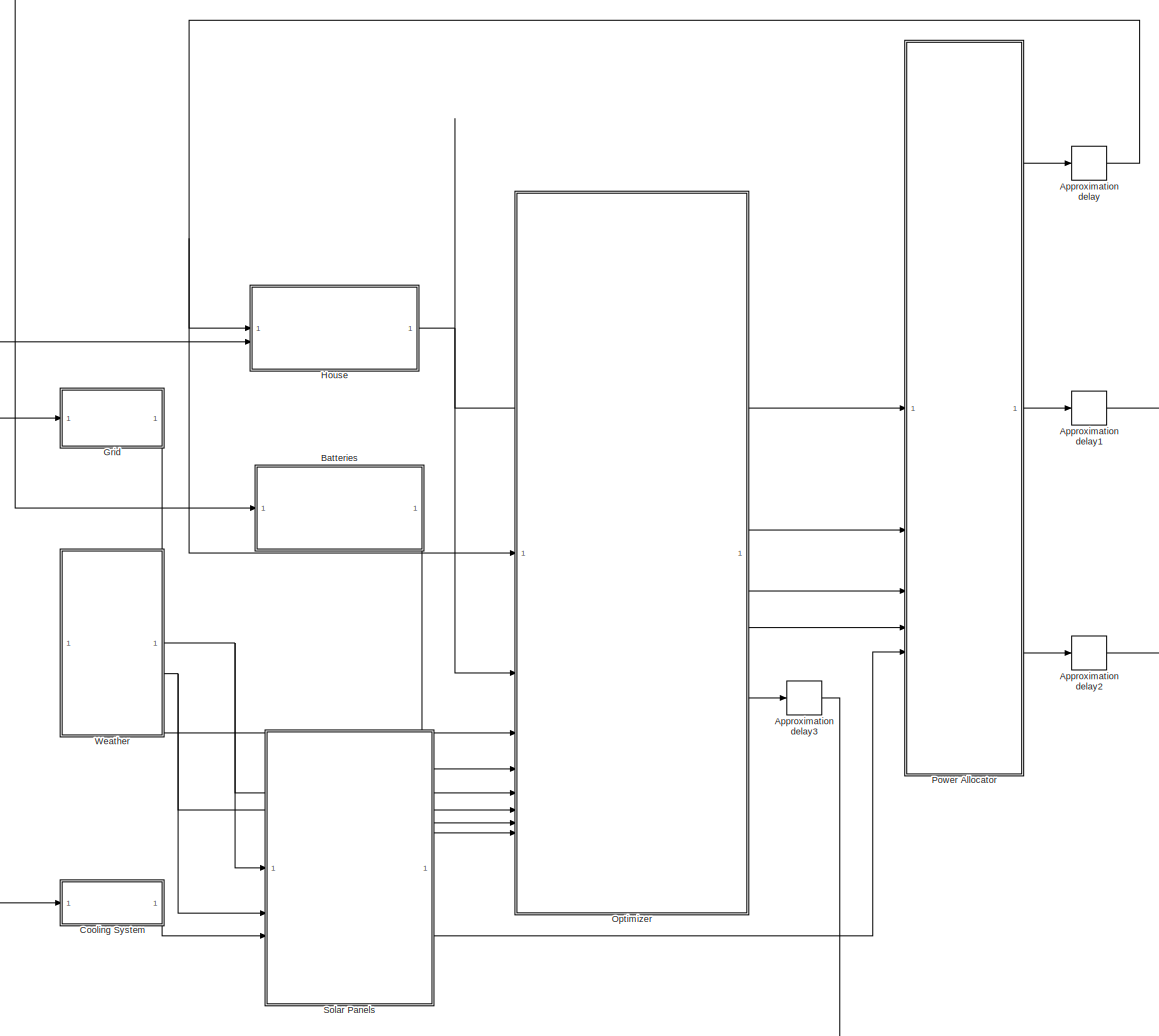
[diagram: root canvas - part 1/1, most of the canvas]
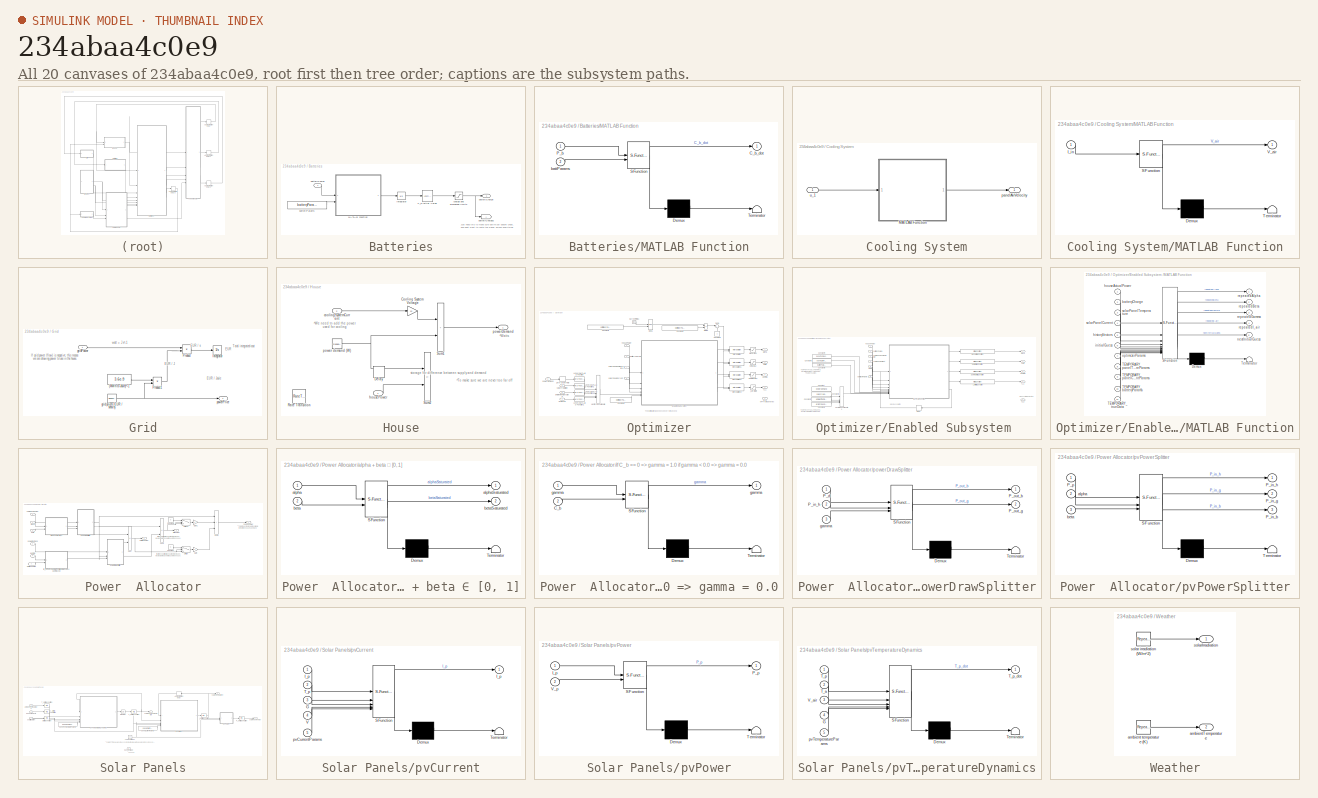
[diagram: thumbnail index - all 20 canvases of the model, root first then tree order]
MODEL slx_234abaa4c0e9
KIND model
CONFIG AbsTol = auto
CONFIG EnableMultiTasking = off
CONFIG FixedStep = optimizerParams.simulinkStepSize
CONFIG MaxStep = auto
CONFIG MinStep = auto
CONFIG RelTol = 1e-3
CONFIG SampleTimeConstraint = Unconstrained
CONFIG SolverName = ode14x
CONFIG StartTime = 0.0
CONFIG StopTime = 75000.0
BLOCK [Delay] Approximation delay
  DelayLength = 1
  InitialCondition = 0
  InputPortMap = u0
BLOCK [Delay] Approximation delay1
  DelayLength = 1
  InitialCondition = 0
  InputPortMap = u0
BLOCK [Delay] Approximation delay2
  DelayLength = 1
  InitialCondition = 0
  InputPortMap = u0
BLOCK [Delay] Approximation delay3
  DelayLength = 1
  InitialCondition = 0
  InputPortMap = u0
BLOCK [SubSystem] Batteries
BLOCK [InitialCondition] Batteries/C_b Initial Value
  Value = 0
BLOCK [Integrator] Batteries/Integrator
BLOCK [SubSystem] Batteries/MATLAB Function
  ErrorFcn = Stateflow.Translate.translate
  LibrarySourceBlock = simulink/User-Defined\nFunctions/MATLAB Function
  PermitHierarchicalResolution = ExplicitOnly
  SFBlockType = MATLAB Function
  TreatAsAtomicUnit = on
BLOCK [Demux] Batteries/MATLAB Function/ Demux 
  Outputs = 1
BLOCK [S-Function] Batteries/MATLAB Function/ SFunction 
  EnableBusSupport = on
  FunctionName = sf_sfun
  PortCounts = [2 2]
  SFcnIsStateOwnerBlock = off
  SFunctionDeploymentMode = off
  Tag = Stateflow S-Function 4
BLOCK [Terminator] Batteries/MATLAB Function/ Terminator 
BLOCK [Outport] Batteries/MATLAB Function/C_b_dot
BLOCK [Inport] Batteries/MATLAB Function/P_b
BLOCK [Inport] Batteries/MATLAB Function/battParams
  Port = 2
BLOCK [Outport] Batteries/batteryCharge
BLOCK [Goto] Batteries/batteryCharge2
  TagVisibility = global
BLOCK [Constant] Batteries/batteryParams
  OutDataTypeStr = Bus: battPars
  Value = batteryParams
BLOCK [Inport] Batteries/batteryPower
BLOCK [Saturate] Batteries/charge and discharge limits
  LowerLimit = 0.0
  UpperLimit = batteryParams.maxCharge
BLOCK [SubSystem] Cooling System
BLOCK [SubSystem] Cooling System/MATLAB Function
  ErrorFcn = Stateflow.Translate.translate
  LibrarySourceBlock = simulink/User-Defined\nFunctions/MATLAB Function
  PermitHierarchicalResolution = ExplicitOnly
  SFBlockType = MATLAB Function
  TreatAsAtomicUnit = on
BLOCK [Demux] Cooling System/MATLAB Function/ Demux 
  Outputs = 1
BLOCK [S-Function] Cooling System/MATLAB Function/ SFunction 
  EnableBusSupport = on
  FunctionName = sf_sfun
  PortCounts = [1 2]
  SFcnIsStateOwnerBlock = off
  SFunctionDeploymentMode = off
  Tag = Stateflow S-Function 7
BLOCK [Terminator] Cooling System/MATLAB Function/ Terminator 
BLOCK [Inport] Cooling System/MATLAB Function/I_in
BLOCK [Outport] Cooling System/MATLAB Function/V_air
BLOCK [Outport] Cooling System/panelAirVelocity
BLOCK [Inport] Cooling System/u_1
BLOCK [SubSystem] Grid
BLOCK [Constant] Grid/(MWh to Joule)^-1
  Value = 3.6e-9
BLOCK [Integrator] Grid/Integrator
BLOCK [Product] Grid/Product
BLOCK [Product] Grid/Product1
BLOCK [Reference] Grid/grid prices (EUR // MWh)  REF=simulink/Sources/Repeating
Sequence
Stair
  SourceBlock = simulink/Sources/Repeating\nSequence\nStair
  SourceType = Repeating Sequence Stair
BLOCK [Inport] Grid/gridPower
BLOCK [Outport] Grid/powerPrice
BLOCK [SubSystem] House
BLOCK [Gain] House/Cooling System Voltage
  Gain = 12
BLOCK [Delay] House/Delay
  DelayLength = 1
  InputPortMap = u0
BLOCK [RateTransition] House/Rate Transition
BLOCK [Sum] House/Sum1
  IconShape = rectangular
  Inputs = +|+
BLOCK [Sum] House/Sum2
  IconShape = rectangular
  Inputs = +|-
BLOCK [Inport] House/coolingSystemCurrent
  Port = 2
BLOCK [Inport] House/housePower
BLOCK [Reference] House/power demand (W)  REF=simulink/Sources/Repeating
Sequence
Stair
  SourceBlock = simulink/Sources/Repeating\nSequence\nStair
  SourceType = Repeating Sequence Stair
BLOCK [Outport] House/powerDemand
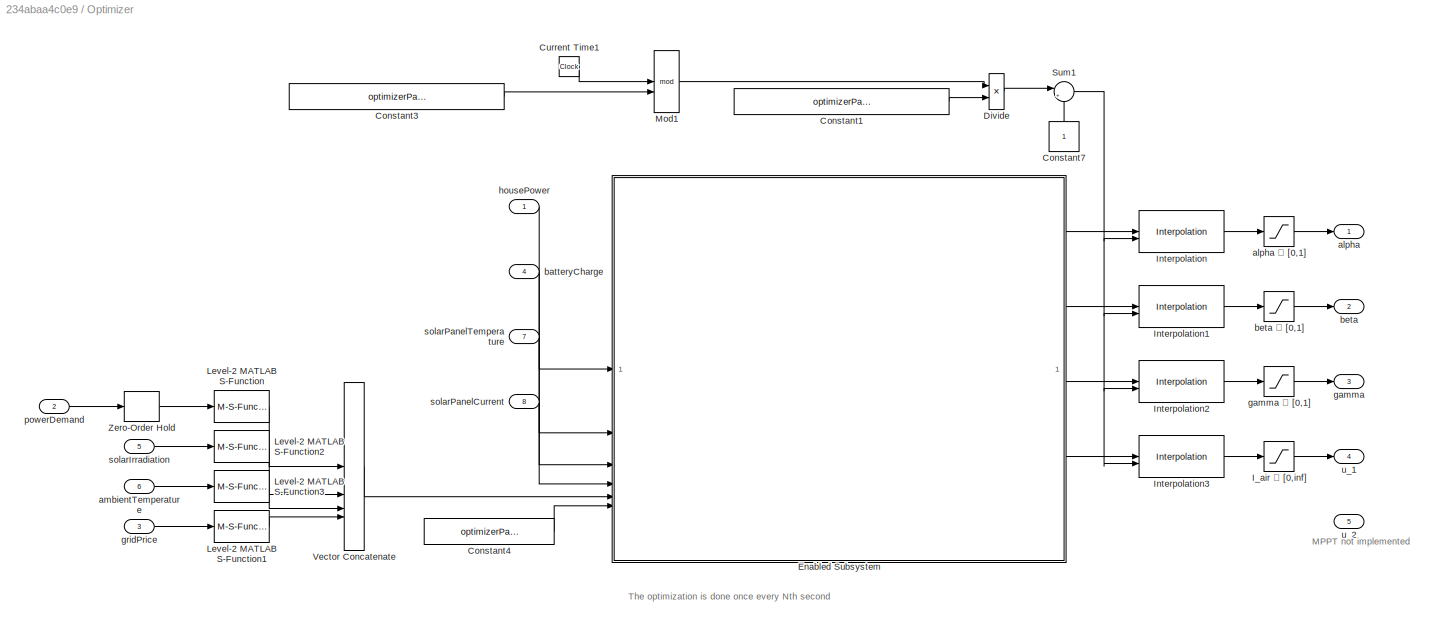
BLOCK [SubSystem] Optimizer
BLOCK [Constant] Optimizer/Constant1
  Value = optimizerParams.simulationStepSize
BLOCK [Constant] Optimizer/Constant3
  Value = optimizerParams.mpcBlockSize
BLOCK [Constant] Optimizer/Constant4
  OutDataTypeStr = Bus: optPars
  Value = optimizerParams
BLOCK [Constant] Optimizer/Constant7
  NameLocation = right
BLOCK [Clock] Optimizer/Current Time1
BLOCK [Product] Optimizer/Divide
  Inputs = */
BLOCK [SubSystem] Optimizer/Enabled Subsystem 
  TreatAsAtomicUnit = on
BLOCK [Constant] Optimizer/Enabled Subsystem /Constant
  Value = powerDemand
BLOCK [Constant] Optimizer/Enabled Subsystem /Constant1
  Value = gridPricesDayBefore
BLOCK [Constant] Optimizer/Enabled Subsystem /Constant2
  Value = solarIrradiation
BLOCK [Constant] Optimizer/Enabled Subsystem /Constant3
  Value = ambientTemperatures
BLOCK [Constant] Optimizer/Enabled Subsystem /Constant4
  OutDataTypeStr = Bus: panTempPars
  Value = panelTemperatureParams
  VectorParams1D = off
BLOCK [Constant] Optimizer/Enabled Subsystem /Constant5
  OutDataTypeStr = Bus: panCurrPars
  Value = panelCurrentParams
  VectorParams1D = off
BLOCK [Constant] Optimizer/Enabled Subsystem /Constant6
  LockScale = on
  OutDataTypeStr = Bus: battPars
  Value = batteryParams
  VectorParams1D = off
BLOCK [Delay] Optimizer/Enabled Subsystem /Delay
  DelayLength = 1
  InitialCondition = 0.26*ones(optimizerParams.numControlInputs*optimizerParams.controlVariableHorizon, 1)
  InputPortMap = u0
BLOCK [InitialCondition] Optimizer/Enabled Subsystem /I_air Initial Condition
  Value = zeros(optimizerParams.optimizationHorizon, 1)
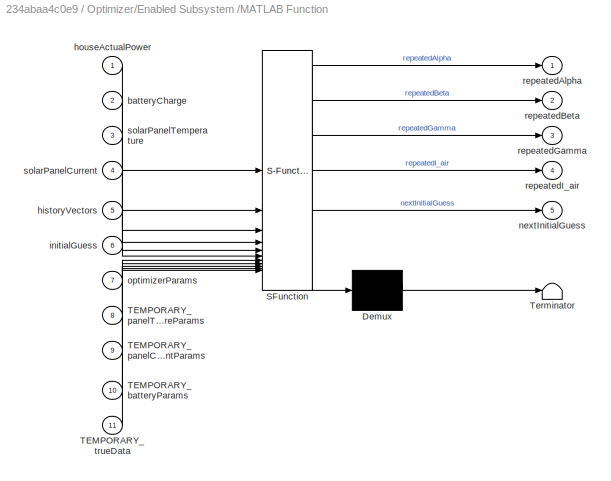
BLOCK [SubSystem] Optimizer/Enabled Subsystem /MATLAB Function
  ErrorFcn = Stateflow.Translate.translate
  LibrarySourceBlock = simulink/User-Defined\nFunctions/MATLAB Function
  MinAlgLoopOccurrences = on
  PermitHierarchicalResolution = ExplicitOnly
  SFBlockType = MATLAB Function
  SystemSampleTime = optimizerParams.mpcBlockSize
  TreatAsAtomicUnit = on
BLOCK [Demux] Optimizer/Enabled Subsystem /MATLAB Function/ Demux 
  Outputs = 1
BLOCK [S-Function] Optimizer/Enabled Subsystem /MATLAB Function/ SFunction 
  EnableBusSupport = on
  FunctionName = sf_sfun
  PortCounts = [11 6]
  SFcnIsStateOwnerBlock = off
  SFunctionDeploymentMode = off
  Tag = Stateflow S-Function 9
BLOCK [Terminator] Optimizer/Enabled Subsystem /MATLAB Function/ Terminator 
BLOCK [Inport] Optimizer/Enabled Subsystem /MATLAB Function/TEMPORARY_batteryParams
  Port = 10
BLOCK [Inport] Optimizer/Enabled Subsystem /MATLAB Function/TEMPORARY_panelCurrentParams
  Port = 9
BLOCK [Inport] Optimizer/Enabled Subsystem /MATLAB Function/TEMPORARY_panelTemperatureParams
  Port = 8
BLOCK [Inport] Optimizer/Enabled Subsystem /MATLAB Function/TEMPORARY_trueData
  Port = 11
BLOCK [Inport] Optimizer/Enabled Subsystem /MATLAB Function/batteryCharge
  Port = 2
BLOCK [Inport] Optimizer/Enabled Subsystem /MATLAB Function/historyVectors
  Port = 5
BLOCK [Inport] Optimizer/Enabled Subsystem /MATLAB Function/houseActualPower
BLOCK [Inport] Optimizer/Enabled Subsystem /MATLAB Function/initialGuess
  Port = 6
BLOCK [Outport] Optimizer/Enabled Subsystem /MATLAB Function/nextInitialGuess
  Port = 5
BLOCK [Inport] Optimizer/Enabled Subsystem /MATLAB Function/optimizerParams
  Port = 7
BLOCK [Outport] Optimizer/Enabled Subsystem /MATLAB Function/repeatedAlpha
BLOCK [Outport] Optimizer/Enabled Subsystem /MATLAB Function/repeatedBeta
  Port = 2
BLOCK [Outport] Optimizer/Enabled Subsystem /MATLAB Function/repeatedGamma
  Port = 3
BLOCK [Outport] Optimizer/Enabled Subsystem /MATLAB Function/repeatedI_air
  Port = 4
BLOCK [Inport] Optimizer/Enabled Subsystem /MATLAB Function/solarPanelCurrent
  Port = 4
BLOCK [Inport] Optimizer/Enabled Subsystem /MATLAB Function/solarPanelTemperature
  Port = 3
BLOCK [Concatenate] Optimizer/Enabled Subsystem /Vector Concatenate1
  ConcatenateDimension = 2
  Mode = Multidimensional array
  NumInputs = 4
BLOCK [Outport] Optimizer/Enabled Subsystem /alpha
BLOCK [InitialCondition] Optimizer/Enabled Subsystem /alpha Initial Condition
  Value = 0.26*ones(optimizerParams.optimizationHorizon, 1)
BLOCK [Inport] Optimizer/Enabled Subsystem /batteryCharge
  Port = 2
BLOCK [Outport] Optimizer/Enabled Subsystem /beta
  Port = 2
BLOCK [InitialCondition] Optimizer/Enabled Subsystem /beta Initial Condition
  Value = 0.25*ones(optimizerParams.optimizationHorizon, 1)
BLOCK [Outport] Optimizer/Enabled Subsystem /gamma
  Port = 3
BLOCK [InitialCondition] Optimizer/Enabled Subsystem /gamma Initial Condition
  Value = ones(optimizerParams.optimizationHorizon, 1)
BLOCK [Inport] Optimizer/Enabled Subsystem /history
  Port = 5
BLOCK [Inport] Optimizer/Enabled Subsystem /housePower
BLOCK [Inport] Optimizer/Enabled Subsystem /optimizerParams
  Port = 6
BLOCK [Inport] Optimizer/Enabled Subsystem /solarPanelCurrent
  Port = 4
BLOCK [Inport] Optimizer/Enabled Subsystem /solarPanelTemperature
  Port = 3
BLOCK [Outport] Optimizer/Enabled Subsystem /u_1
  Port = 4
BLOCK [Outport] Optimizer/Enabled Subsystem /u_2
  Port = 5
BLOCK [Saturate] Optimizer/I_air ∈ [0,inf]
  LowerLimit = 0
  UpperLimit = 99999999
BLOCK [Reference] Optimizer/Interpolation  REF=dspsigops/Interpolation
  SourceBlock = dspsigops/Interpolation
  SourceType = Interpolation
BLOCK [Reference] Optimizer/Interpolation1  REF=dspsigops/Interpolation
  SourceBlock = dspsigops/Interpolation
  SourceType = Interpolation
BLOCK [Reference] Optimizer/Interpolation2  REF=dspsigops/Interpolation
  SourceBlock = dspsigops/Interpolation
  SourceType = Interpolation
BLOCK [Reference] Optimizer/Interpolation3  REF=dspsigops/Interpolation
  SourceBlock = dspsigops/Interpolation
  SourceType = Interpolation
BLOCK [M-S-Function] Optimizer/Level-2 MATLAB S-Function
  FunctionName = history
  Parameters = SECONDS_IN_A_DAY
BLOCK [M-S-Function] Optimizer/Level-2 MATLAB S-Function1
  FunctionName = history
  Parameters = SECONDS_IN_A_DAY
BLOCK [M-S-Function] Optimizer/Level-2 MATLAB S-Function2
  FunctionName = history
  Parameters = SECONDS_IN_A_DAY
BLOCK [M-S-Function] Optimizer/Level-2 MATLAB S-Function3
  FunctionName = history
  Parameters = SECONDS_IN_A_DAY
BLOCK [Math] Optimizer/Mod1
  Operator = mod
  OutputSignalType = real
BLOCK [Sum] Optimizer/Sum1
  Inputs = |++
BLOCK [Concatenate] Optimizer/Vector Concatenate
  ConcatenateDimension = 2
  Mode = Multidimensional array
  NumInputs = 4
BLOCK [ZeroOrderHold] Optimizer/Zero-Order Hold
BLOCK [Outport] Optimizer/alpha
BLOCK [Saturate] Optimizer/alpha ∈ [0,1]
  LowerLimit = 0
  UpperLimit = 1
BLOCK [Inport] Optimizer/ambientTemperature
  Port = 6
BLOCK [Inport] Optimizer/batteryCharge
  Port = 4
BLOCK [Outport] Optimizer/beta
  Port = 2
BLOCK [Saturate] Optimizer/beta ∈ [0,1]
  LowerLimit = 0
  UpperLimit = 1
BLOCK [Outport] Optimizer/gamma
  Port = 3
BLOCK [Saturate] Optimizer/gamma ∈ [0,1]
  LowerLimit = 0
  UpperLimit = 1
BLOCK [Inport] Optimizer/gridPrice
  Port = 3
BLOCK [Inport] Optimizer/housePower
BLOCK [Inport] Optimizer/powerDemand
  Port = 2
BLOCK [Inport] Optimizer/solarIrradiation
  Port = 5
BLOCK [Inport] Optimizer/solarPanelCurrent
  Port = 8
BLOCK [Inport] Optimizer/solarPanelTemperature
  Port = 7
BLOCK [Outport] Optimizer/u_1
  Port = 4
BLOCK [Outport] Optimizer/u_2
  Port = 5
BLOCK [SubSystem] Power  Allocator
BLOCK [Constant] Power  Allocator/Constant
  Value = 0
BLOCK [Constant] Power  Allocator/Constant1
  Value = 0
BLOCK [Gain] Power  Allocator/Gain
  Gain = -1
BLOCK [Gain] Power  Allocator/Gain1
  Gain = -1
BLOCK [Sum] Power  Allocator/Sum
  IconShape = rectangular
  Inputs = +|-
BLOCK [Sum] Power  Allocator/Sum2
  IconShape = rectangular
  Inputs = +|-
BLOCK [Sum] Power  Allocator/Sum3
  IconShape = rectangular
  Inputs = +++
BLOCK [Switch] Power  Allocator/Switch
  Criteria = u2 > Threshold
  InputSameDT = off
  SaturateOnIntegerOverflow = off
BLOCK [Switch] Power  Allocator/Switch1
  Criteria = u2 > Threshold
  InputSameDT = off
  SaturateOnIntegerOverflow = off
BLOCK [Inport] Power  Allocator/alpha
  Port = 2
BLOCK [SubSystem] Power  Allocator/alpha + beta ∈ [0, 1]
  ErrorFcn = Stateflow.Translate.translate
  LibrarySourceBlock = simulink/User-Defined\nFunctions/MATLAB Function
  PermitHierarchicalResolution = ExplicitOnly
  SFBlockType = MATLAB Function
  TreatAsAtomicUnit = on
BLOCK [Demux] Power  Allocator/alpha + beta ∈ [0, 1]/ Demux 
  Outputs = 1
BLOCK [S-Function] Power  Allocator/alpha + beta ∈ [0, 1]/ SFunction 
  EnableBusSupport = on
  FunctionName = sf_sfun
  PortCounts = [2 3]
  SFcnIsStateOwnerBlock = off
  SFunctionDeploymentMode = off
  Tag = Stateflow S-Function 8
BLOCK [Terminator] Power  Allocator/alpha + beta ∈ [0, 1]/ Terminator 
BLOCK [Inport] Power  Allocator/alpha + beta ∈ [0, 1]/alpha
BLOCK [Outport] Power  Allocator/alpha + beta ∈ [0, 1]/alphaSaturated
BLOCK [Inport] Power  Allocator/alpha + beta ∈ [0, 1]/beta
  Port = 2
BLOCK [Outport] Power  Allocator/alpha + beta ∈ [0, 1]/betaSaturated
  Port = 2
BLOCK [From] Power  Allocator/batteryCharge
  TagVisibility = global
BLOCK [Outport] Power  Allocator/batteryPower
  Port = 2
BLOCK [Inport] Power  Allocator/beta
  Port = 3
BLOCK [Inport] Power  Allocator/gamma
  Port = 4
BLOCK [Outport] Power  Allocator/gridPower
  Port = 3
BLOCK [Outport] Power  Allocator/housePower
BLOCK [SubSystem] Power  Allocator/if C_b == 0 => gamma = 1.0 if gamma < 0.0 => gamma = 0.0
  ErrorFcn = Stateflow.Translate.translate
  LibrarySourceBlock = simulink/User-Defined\nFunctions/MATLAB Function
  PermitHierarchicalResolution = ExplicitOnly
  SFBlockType = MATLAB Function
  TreatAsAtomicUnit = on
BLOCK [Demux] Power  Allocator/if C_b == 0 => gamma = 1.0 if gamma < 0.0 => gamma = 0.0/ Demux 
  Outputs = 1
BLOCK [S-Function] Power  Allocator/if C_b == 0 => gamma = 1.0 if gamma < 0.0 => gamma = 0.0/ SFunction 
  EnableBusSupport = on
  FunctionName = sf_sfun
  PortCounts = [2 2]
  SFcnIsStateOwnerBlock = off
  SFunctionDeploymentMode = off
  Tag = Stateflow S-Function 10
BLOCK [Terminator] Power  Allocator/if C_b == 0 => gamma = 1.0 if gamma < 0.0 => gamma = 0.0/ Terminator 
BLOCK [Inport] Power  Allocator/if C_b == 0 => gamma = 1.0 if gamma < 0.0 => gamma = 0.0/C_b
  Port = 2
BLOCK [Outport] Power  Allocator/if C_b == 0 => gamma = 1.0 if gamma < 0.0 => gamma = 0.0/gamma
BLOCK [Inport] Power  Allocator/if C_b == 0 => gamma = 1.0 if gamma < 0.0 => gamma = 0.0/gamma 
BLOCK [Inport] Power  Allocator/powerDemand
BLOCK [SubSystem] Power  Allocator/powerDrawSplitter
  ErrorFcn = Stateflow.Translate.translate
  LibrarySourceBlock = simulink/User-Defined\nFunctions/MATLAB Function
  PermitHierarchicalResolution = ExplicitOnly
  SFBlockType = MATLAB Function
  TreatAsAtomicUnit = on
BLOCK [Demux] Power  Allocator/powerDrawSplitter/ Demux 
  Outputs = 1
BLOCK [S-Function] Power  Allocator/powerDrawSplitter/ SFunction 
  EnableBusSupport = on
  FunctionName = sf_sfun
  PortCounts = [3 3]
  SFcnIsStateOwnerBlock = off
  SFunctionDeploymentMode = off
  Tag = Stateflow S-Function 5
BLOCK [Terminator] Power  Allocator/powerDrawSplitter/ Terminator 
BLOCK [Inport] Power  Allocator/powerDrawSplitter/P_d
BLOCK [Inport] Power  Allocator/powerDrawSplitter/P_in_h
  Port = 2
BLOCK [Outport] Power  Allocator/powerDrawSplitter/P_out_b
BLOCK [Outport] Power  Allocator/powerDrawSplitter/P_out_g
  Port = 2
BLOCK [Inport] Power  Allocator/powerDrawSplitter/gamma
  Port = 3
BLOCK [SubSystem] Power  Allocator/pvPowerSplitter
  ErrorFcn = Stateflow.Translate.translate
  LibrarySourceBlock = simulink/User-Defined\nFunctions/MATLAB Function
  PermitHierarchicalResolution = ExplicitOnly
  SFBlockType = MATLAB Function
  TreatAsAtomicUnit = on
BLOCK [Demux] Power  Allocator/pvPowerSplitter/ Demux 
  Outputs = 1
BLOCK [S-Function] Power  Allocator/pvPowerSplitter/ SFunction 
  EnableBusSupport = on
  FunctionName = sf_sfun
  PortCounts = [3 4]
  SFcnIsStateOwnerBlock = off
  SFunctionDeploymentMode = off
  Tag = Stateflow S-Function 6
BLOCK [Terminator] Power  Allocator/pvPowerSplitter/ Terminator 
BLOCK [Outport] Power  Allocator/pvPowerSplitter/P_in_b
  Port = 3
BLOCK [Outport] Power  Allocator/pvPowerSplitter/P_in_g
  Port = 2
BLOCK [Outport] Power  Allocator/pvPowerSplitter/P_in_h
BLOCK [Inport] Power  Allocator/pvPowerSplitter/P_p
BLOCK [Inport] Power  Allocator/pvPowerSplitter/alpha
  Port = 2
BLOCK [Inport] Power  Allocator/pvPowerSplitter/beta
  Port = 3
BLOCK [Inport] Power  Allocator/solarPanelPower
  Port = 5
BLOCK [SubSystem] Solar Panels
BLOCK [Delay] Solar Panels/Approximation delay
  DelayLength = 1
  InitialCondition = 0
  InputPortMap = u0
  NameLocation = top
BLOCK [InitialCondition] Solar Panels/G initial condition
  Value = 0
BLOCK [InitialCondition] Solar Panels/I_p initial condition
  Value = 0
BLOCK [Integrator] Solar Panels/Integrator
  InitialCondition = 278.65
BLOCK [Constant] Solar Panels/Load Voltage1
  Value = 12
BLOCK [InitialCondition] Solar Panels/P_p initial condition
  Value = 0
BLOCK [InitialCondition] Solar Panels/T_a initial condition
  Value = 278.65
BLOCK [InitialCondition] Solar Panels/T_p initial condition
  Value = 278.65
BLOCK [InitialCondition] Solar Panels/V_air initial condition
  Value = 0
BLOCK [Inport] Solar Panels/ambientTemperature
  Port = 2
BLOCK [Inport] Solar Panels/panelAirVelocity
  Port = 3
BLOCK [Constant] Solar Panels/panelCurrentParams
  OutDataTypeStr = Bus: panCurrPars
  Value = panelCurrentParams
BLOCK [Constant] Solar Panels/panelTemperatureParams
  OutDataTypeStr = Bus: panTempPars
  Value = panelTemperatureParams
BLOCK [Inport] Solar Panels/panelVoltage
  Port = 4
BLOCK [SubSystem] Solar Panels/pvCurrent
  ErrorFcn = Stateflow.Translate.translate
  LibrarySourceBlock = simulink/User-Defined\nFunctions/MATLAB Function
  PermitHierarchicalResolution = ExplicitOnly
  SFBlockType = MATLAB Function
  TreatAsAtomicUnit = on
BLOCK [Demux] Solar Panels/pvCurrent/ Demux 
  Outputs = 1
BLOCK [S-Function] Solar Panels/pvCurrent/ SFunction 
  EnableBusSupport = on
  FunctionName = sf_sfun
  PortCounts = [5 2]
  SFcnIsStateOwnerBlock = off
  SFunctionDeploymentMode = off
  Tag = Stateflow S-Function 1
BLOCK [Terminator] Solar Panels/pvCurrent/ Terminator 
BLOCK [Inport] Solar Panels/pvCurrent/G
  Port = 3
BLOCK [Outport] Solar Panels/pvCurrent/I_p
BLOCK [Inport] Solar Panels/pvCurrent/I_p 
BLOCK [Inport] Solar Panels/pvCurrent/T_p
  Port = 2
BLOCK [Inport] Solar Panels/pvCurrent/V
  Port = 4
BLOCK [Inport] Solar Panels/pvCurrent/pvCurrentParams
  Port = 5
BLOCK [SubSystem] Solar Panels/pvPower
  ErrorFcn = Stateflow.Translate.translate
  LibrarySourceBlock = simulink/User-Defined\nFunctions/MATLAB Function
  PermitHierarchicalResolution = ExplicitOnly
  SFBlockType = MATLAB Function
  TreatAsAtomicUnit = on
BLOCK [Demux] Solar Panels/pvPower/ Demux 
  Outputs = 1
BLOCK [S-Function] Solar Panels/pvPower/ SFunction 
  EnableBusSupport = on
  FunctionName = sf_sfun
  PortCounts = [2 2]
  SFcnIsStateOwnerBlock = off
  SFunctionDeploymentMode = off
  Tag = Stateflow S-Function 3
BLOCK [Terminator] Solar Panels/pvPower/ Terminator 
BLOCK [Inport] Solar Panels/pvPower/I_p
BLOCK [Outport] Solar Panels/pvPower/P_p
BLOCK [Inport] Solar Panels/pvPower/V_p
  Port = 2
BLOCK [SubSystem] Solar Panels/pvTemperatureDynamics
  ErrorFcn = Stateflow.Translate.translate
  LibrarySourceBlock = simulink/User-Defined\nFunctions/MATLAB Function
  PermitHierarchicalResolution = ExplicitOnly
  SFBlockType = MATLAB Function
  TreatAsAtomicUnit = on
BLOCK [Demux] Solar Panels/pvTemperatureDynamics/ Demux 
  Outputs = 1
BLOCK [S-Function] Solar Panels/pvTemperatureDynamics/ SFunction 
  EnableBusSupport = on
  FunctionName = sf_sfun
  PortCounts = [5 2]
  SFcnIsStateOwnerBlock = off
  SFunctionDeploymentMode = off
  Tag = Stateflow S-Function 2
BLOCK [Terminator] Solar Panels/pvTemperatureDynamics/ Terminator 
BLOCK [Inport] Solar Panels/pvTemperatureDynamics/G
  Port = 4
BLOCK [Inport] Solar Panels/pvTemperatureDynamics/T_a
  Port = 2
BLOCK [Inport] Solar Panels/pvTemperatureDynamics/T_p
BLOCK [Outport] Solar Panels/pvTemperatureDynamics/T_p_dot
BLOCK [Inport] Solar Panels/pvTemperatureDynamics/V_air
  Port = 3
BLOCK [Inport] Solar Panels/pvTemperatureDynamics/pvTemperatureParams
  Port = 5
BLOCK [Inport] Solar Panels/solarIrradiation
BLOCK [Outport] Solar Panels/solarPanelCurrent
  Port = 2
BLOCK [Outport] Solar Panels/solarPanelPower
  Port = 3
BLOCK [Outport] Solar Panels/solarPanelTemperature
BLOCK [SubSystem] Weather
BLOCK [Reference] Weather/ambient temperature (K)  REF=simulink/Sources/Repeating
Sequence
Stair
  SourceBlock = simulink/Sources/Repeating\nSequence\nStair
  SourceType = Repeating Sequence Stair
BLOCK [Outport] Weather/ambientTemperature
  Port = 2
BLOCK [Reference] Weather/solar irradiation (W//m^2)  REF=simulink/Sources/Repeating
Sequence
Stair
  SourceBlock = simulink/Sources/Repeating\nSequence\nStair
  SourceType = Repeating Sequence Stair
BLOCK [Outport] Weather/solarIrradiation
ANNOTATION Batteries: Just need this to make sure optimizer doesn't cheat, and don't want to route the signal across everything
ANNOTATION Grid: EUR
ANNOTATION Grid: EUR / J
ANNOTATION Grid: EUR / Joule
ANNOTATION Grid: EUR / s
ANNOTATION Grid: If grid power (flow) is negative, this means we are drawing power to use in the house.
ANNOTATION Grid: Total integrated cost
ANNOTATION Grid: watt = J s^-1
ANNOTATION House: ^To make sure we are never too far off
ANNOTATION House: ^Watts
ANNOTATION House: ^We need to add the power used for cooling
ANNOTATION House: storage for difference between supply and demand
ANNOTATION Optimizer: MPPT not implemented
ANNOTATION Optimizer: The optimization is done once every Nth second
ANNOTATION Optimizer/Enabled Subsystem : MPPT not implemented
ANNOTATION Optimizer/Enabled Subsystem : TEMPORARY SOLUTION UNTIL ESTIMATION IS IMPLEMENTED
ANNOTATION Optimizer/Enabled Subsystem : TEMPORARY SOLUTION WHILE OPTIMIZER SIMULATION USES TRUE DYNAMICS
ANNOTATION Optimizer/Enabled Subsystem : previous solution
ANNOTATION Power  Allocator: If battery power (flow) is negative, this means we are drawing power to use in the house.
ANNOTATION Power  Allocator: If grid power (flow) is negative, this means we are drawing power to use in the house.
ANNOTATION Power  Allocator: ^This is the actual power available to meet the house's demand
ANNOTATION Solar Panels: ^For MPPT this would not be constant, neither would the load resistance in pvCurrent
ANNOTATION Solar Panels: ^unused
LINE Approximation delay1:1 -> Batteries:1
LINE Approximation delay2:1 -> Grid:1
NET Approximation delay3:1 -> Cooling System:1, House:2
NET Approximation delay:1 -> House:1, Optimizer:1
LINE Batteries/C_b Initial Value:1 -> Batteries/charge and discharge limits:1
LINE Batteries/Integrator:1 -> Batteries/C_b Initial Value:1
LINE Batteries/MATLAB Function:1 -> Batteries/Integrator:1
LINE Batteries/batteryParams:1 -> Batteries/MATLAB Function:2
LINE Batteries/batteryPower:1 -> Batteries/MATLAB Function:1
NET Batteries/charge and discharge limits:1 -> Batteries/batteryCharge2:1, Batteries/batteryCharge:1
LINE Batteries:1 -> Optimizer:4
LINE Cooling System/MATLAB Function:1 -> Cooling System/panelAirVelocity:1
LINE Cooling System/u_1:1 -> Cooling System/MATLAB Function:1
LINE Cooling System:1 -> Solar Panels:3
LINE Grid/(MWh to Joule)^-1:1 -> Grid/Product1:1
LINE Grid/Product1:1 -> Grid/Product:2
LINE Grid/Product:1 -> Grid/Integrator:1
NET Grid/grid prices (EUR // MWh):1 -> Grid/Product1:2, Grid/powerPrice:1
LINE Grid/gridPower:1 -> Grid/Product:1
LINE Grid:1 -> Optimizer:3
LINE House/Cooling System Voltage:1 -> House/Sum1:1
LINE House/Sum1:1 -> House/powerDemand:1
LINE House/coolingSystemCurrent:1 -> House/Cooling System Voltage:1
LINE House/housePower:1 -> House/Sum2:2
NET House/power demand (W):1 -> House/Sum1:2, House/Sum2:1
NET House:1 -> Optimizer:2, Power  Allocator:1
LINE Optimizer/Constant1:1 -> Optimizer/Divide:2
LINE Optimizer/Constant3:1 -> Optimizer/Mod1:2
LINE Optimizer/Constant4:1 -> Optimizer/Enabled Subsystem :6
LINE Optimizer/Constant7:1 -> Optimizer/Sum1:2
LINE Optimizer/Current Time1:1 -> Optimizer/Mod1:1
LINE Optimizer/Divide:1 -> Optimizer/Sum1:1
LINE Optimizer/Enabled Subsystem /Constant1:1 -> Optimizer/Enabled Subsystem /Vector Concatenate1:4
LINE Optimizer/Enabled Subsystem /Constant2:1 -> Optimizer/Enabled Subsystem /Vector Concatenate1:2
LINE Optimizer/Enabled Subsystem /Constant3:1 -> Optimizer/Enabled Subsystem /Vector Concatenate1:3
LINE Optimizer/Enabled Subsystem /Constant4:1 -> Optimizer/Enabled Subsystem /MATLAB Function:8
LINE Optimizer/Enabled Subsystem /Constant5:1 -> Optimizer/Enabled Subsystem /MATLAB Function:9
LINE Optimizer/Enabled Subsystem /Constant6:1 -> Optimizer/Enabled Subsystem /MATLAB Function:10
LINE Optimizer/Enabled Subsystem /Constant:1 -> Optimizer/Enabled Subsystem /Vector Concatenate1:1
LINE Optimizer/Enabled Subsystem /Delay:1 -> Optimizer/Enabled Subsystem /MATLAB Function:6
LINE Optimizer/Enabled Subsystem /I_air Initial Condition:1 -> Optimizer/Enabled Subsystem /u_1:1
LINE Optimizer/Enabled Subsystem /MATLAB Function:1 -> Optimizer/Enabled Subsystem /alpha Initial Condition:1
LINE Optimizer/Enabled Subsystem /MATLAB Function:2 -> Optimizer/Enabled Subsystem /beta Initial Condition:1
LINE Optimizer/Enabled Subsystem /MATLAB Function:3 -> Optimizer/Enabled Subsystem /gamma Initial Condition:1
LINE Optimizer/Enabled Subsystem /MATLAB Function:4 -> Optimizer/Enabled Subsystem /I_air Initial Condition:1
LINE Optimizer/Enabled Subsystem /MATLAB Function:5 -> Optimizer/Enabled Subsystem /Delay:1
LINE Optimizer/Enabled Subsystem /Vector Concatenate1:1 -> Optimizer/Enabled Subsystem /MATLAB Function:11
LINE Optimizer/Enabled Subsystem /alpha Initial Condition:1 -> Optimizer/Enabled Subsystem /alpha:1
LINE Optimizer/Enabled Subsystem /batteryCharge:1 -> Optimizer/Enabled Subsystem /MATLAB Function:2
LINE Optimizer/Enabled Subsystem /beta Initial Condition:1 -> Optimizer/Enabled Subsystem /beta:1
LINE Optimizer/Enabled Subsystem /gamma Initial Condition:1 -> Optimizer/Enabled Subsystem /gamma:1
LINE Optimizer/Enabled Subsystem /history:1 -> Optimizer/Enabled Subsystem /MATLAB Function:5
LINE Optimizer/Enabled Subsystem /housePower:1 -> Optimizer/Enabled Subsystem /MATLAB Function:1
LINE Optimizer/Enabled Subsystem /optimizerParams:1 -> Optimizer/Enabled Subsystem /MATLAB Function:7
LINE Optimizer/Enabled Subsystem /solarPanelCurrent:1 -> Optimizer/Enabled Subsystem /MATLAB Function:4
LINE Optimizer/Enabled Subsystem /solarPanelTemperature:1 -> Optimizer/Enabled Subsystem /MATLAB Function:3
LINE Optimizer/Enabled Subsystem :1 -> Optimizer/Interpolation:1
LINE Optimizer/Enabled Subsystem :2 -> Optimizer/Interpolation1:1
LINE Optimizer/Enabled Subsystem :3 -> Optimizer/Interpolation2:1
LINE Optimizer/Enabled Subsystem :4 -> Optimizer/Interpolation3:1
LINE Optimizer/I_air ∈ [0,inf]:1 -> Optimizer/u_1:1
LINE Optimizer/Interpolation1:1 -> Optimizer/beta ∈ [0,1]:1
LINE Optimizer/Interpolation2:1 -> Optimizer/gamma ∈ [0,1]:1
LINE Optimizer/Interpolation3:1 -> Optimizer/I_air ∈ [0,inf]:1
LINE Optimizer/Interpolation:1 -> Optimizer/alpha ∈ [0,1]:1
LINE Optimizer/Level-2 MATLAB S-Function1:1 -> Optimizer/Vector Concatenate:4
LINE Optimizer/Level-2 MATLAB S-Function2:1 -> Optimizer/Vector Concatenate:2
LINE Optimizer/Level-2 MATLAB S-Function3:1 -> Optimizer/Vector Concatenate:3
LINE Optimizer/Level-2 MATLAB S-Function:1 -> Optimizer/Vector Concatenate:1
LINE Optimizer/Mod1:1 -> Optimizer/Divide:1
NET Optimizer/Sum1:1 -> Optimizer/Interpolation1:2, Optimizer/Interpolation2:2, Optimizer/Interpolation3:2, Optimizer/Interpolation:2
LINE Optimizer/Vector Concatenate:1 -> Optimizer/Enabled Subsystem :5
LINE Optimizer/Zero-Order Hold:1 -> Optimizer/Level-2 MATLAB S-Function:1
LINE Optimizer/alpha ∈ [0,1]:1 -> Optimizer/alpha:1
LINE Optimizer/ambientTemperature:1 -> Optimizer/Level-2 MATLAB S-Function3:1
LINE Optimizer/batteryCharge:1 -> Optimizer/Enabled Subsystem :2
LINE Optimizer/beta ∈ [0,1]:1 -> Optimizer/beta:1
LINE Optimizer/gamma ∈ [0,1]:1 -> Optimizer/gamma:1
LINE Optimizer/gridPrice:1 -> Optimizer/Level-2 MATLAB S-Function1:1
LINE Optimizer/housePower:1 -> Optimizer/Enabled Subsystem :1
LINE Optimizer/powerDemand:1 -> Optimizer/Zero-Order Hold:1
LINE Optimizer/solarIrradiation:1 -> Optimizer/Level-2 MATLAB S-Function2:1
LINE Optimizer/solarPanelCurrent:1 -> Optimizer/Enabled Subsystem :4
LINE Optimizer/solarPanelTemperature:1 -> Optimizer/Enabled Subsystem :3
LINE Optimizer:1 -> Power  Allocator:2
LINE Optimizer:2 -> Power  Allocator:3
LINE Optimizer:3 -> Power  Allocator:4
LINE Optimizer:4 -> Approximation delay3:1
LINE Power  Allocator/Constant1:1 -> Power  Allocator/Switch1:1
LINE Power  Allocator/Constant:1 -> Power  Allocator/Switch:1
LINE Power  Allocator/Gain1:1 -> Power  Allocator/Sum3:2
LINE Power  Allocator/Gain:1 -> Power  Allocator/Sum3:3
NET Power  Allocator/Sum2:1 -> Power  Allocator/Switch1:2, Power  Allocator/Switch1:3, Power  Allocator/gridPower:1
LINE Power  Allocator/Sum3:1 -> Power  Allocator/housePower:1
NET Power  Allocator/Sum:1 -> Power  Allocator/Switch:2, Power  Allocator/Switch:3, Power  Allocator/batteryPower:1
LINE Power  Allocator/Switch1:1 -> Power  Allocator/Gain1:1
LINE Power  Allocator/Switch:1 -> Power  Allocator/Gain:1
LINE Power  Allocator/alpha + beta ∈ [0, 1]:1 -> Power  Allocator/pvPowerSplitter:2
LINE Power  Allocator/alpha + beta ∈ [0, 1]:2 -> Power  Allocator/pvPowerSplitter:3
LINE Power  Allocator/alpha:1 -> Power  Allocator/alpha + beta ∈ [0, 1]:1
LINE Power  Allocator/batteryCharge:1 -> Power  Allocator/if C_b == 0 => gamma = 1.0 if gamma < 0.0 => gamma = 0.0:2
LINE Power  Allocator/beta:1 -> Power  Allocator/alpha + beta ∈ [0, 1]:2
LINE Power  Allocator/gamma:1 -> Power  Allocator/if C_b == 0 => gamma = 1.0 if gamma < 0.0 => gamma = 0.0:1
LINE Power  Allocator/if C_b == 0 => gamma = 1.0 if gamma < 0.0 => gamma = 0.0:1 -> Power  Allocator/powerDrawSplitter:3
LINE Power  Allocator/powerDemand:1 -> Power  Allocator/powerDrawSplitter:1
LINE Power  Allocator/powerDrawSplitter:1 -> Power  Allocator/Sum:2
LINE Power  Allocator/powerDrawSplitter:2 -> Power  Allocator/Sum2:2
NET Power  Allocator/pvPowerSplitter:1 -> Power  Allocator/Sum3:1, Power  Allocator/powerDrawSplitter:2
LINE Power  Allocator/pvPowerSplitter:2 -> Power  Allocator/Sum2:1
LINE Power  Allocator/pvPowerSplitter:3 -> Power  Allocator/Sum:1
LINE Power  Allocator/solarPanelPower:1 -> Power  Allocator/pvPowerSplitter:1
LINE Power  Allocator:1 -> Approximation delay:1
LINE Power  Allocator:2 -> Approximation delay1:1
LINE Power  Allocator:3 -> Approximation delay2:1
LINE Solar Panels/Approximation delay:1 -> Solar Panels/pvCurrent:1
NET Solar Panels/G initial condition:1 -> Solar Panels/pvCurrent:3, Solar Panels/pvTemperatureDynamics:4
NET Solar Panels/I_p initial condition:1 -> Solar Panels/Approximation delay:1, Solar Panels/pvPower:1, Solar Panels/solarPanelCurrent:1
LINE Solar Panels/Integrator:1 -> Solar Panels/T_p initial condition:1
NET Solar Panels/Load Voltage1:1 -> Solar Panels/pvCurrent:4, Solar Panels/pvPower:2
LINE Solar Panels/P_p initial condition:1 -> Solar Panels/solarPanelPower:1
LINE Solar Panels/T_a initial condition:1 -> Solar Panels/pvTemperatureDynamics:2
NET Solar Panels/T_p initial condition:1 -> Solar Panels/pvCurrent:2, Solar Panels/pvTemperatureDynamics:1, Solar Panels/solarPanelTemperature:1
LINE Solar Panels/V_air initial condition:1 -> Solar Panels/pvTemperatureDynamics:3
LINE Solar Panels/ambientTemperature:1 -> Solar Panels/T_a initial condition:1
LINE Solar Panels/panelAirVelocity:1 -> Solar Panels/V_air initial condition:1
LINE Solar Panels/panelCurrentParams:1 -> Solar Panels/pvCurrent:5
LINE Solar Panels/panelTemperatureParams:1 -> Solar Panels/pvTemperatureDynamics:5
LINE Solar Panels/pvCurrent:1 -> Solar Panels/I_p initial condition:1
LINE Solar Panels/pvPower:1 -> Solar Panels/P_p initial condition:1
LINE Solar Panels/pvTemperatureDynamics:1 -> Solar Panels/Integrator:1
LINE Solar Panels/solarIrradiation:1 -> Solar Panels/G initial condition:1
LINE Solar Panels:1 -> Optimizer:7
LINE Solar Panels:2 -> Optimizer:8
LINE Solar Panels:3 -> Power  Allocator:5
LINE Weather/ambient temperature (K):1 -> Weather/ambientTemperature:1
LINE Weather/solar irradiation (W//m^2):1 -> Weather/solarIrradiation:1
NET Weather:1 -> Optimizer:5, Solar Panels:1
NET Weather:2 -> Optimizer:6, Solar Panels:2
note: NET lines group one-source signal fan-out (src -> all destinations, sorted); 1:1 wires keep LINE
CHART Power  Allocator/alpha + beta ∈ [0, 1] states=1 transitions=1
  STATE_LABEL 'eML_blk_kernel()'
  STATE_LABEL "SCRIPT:\nfunction [alphaSaturated, betaSaturated] = fcn(alpha, beta)\n% We need to make sure the actual control inputs don't violate constraints\n    if (alpha + beta > 1.0)\n        diff = (alpha + beta) - 1;\n        alphaSaturated = alpha - 0.5*diff;\n        betaSaturated  = beta - 0.5*diff;\n    else\n        alphaSaturated = alpha;\n        betaSaturated = beta;\n    end\nend\n"
CHART Optimizer/Enabled
Subsystem /MATLAB Function states=1 transitions=1
  STATE_LABEL 'eML_blk_kernel()'
  STATE_LABEL 'SCRIPT:\nfunction [repeatedAlpha, repeatedBeta, repeatedGamma, repeatedI_air, nextInitialGuess] = optimizer(...\n                                                 houseActualPower,...\n                                                 batteryCharge,...\n                                                 solarPanelTemperature,...\n                                                 solarPanelCurrent,...\n      ...<+2244ch>'
CHART Power  Allocator/if C_b == 0 => gamma = 1.0
if gamma < 0.0 => gamma = 0.0 states=1 transitions=1
  STATE_LABEL 'eML_blk_kernel()'
  STATE_LABEL "SCRIPT:\nfunction gamma  = fcn(gamma, C_b)\n% We need to make sure the actual control inputs don't violate constraints\n    if C_b <= 0.0\n        gamma = 1.0;\n    end\n    if gamma < 0.0\n        gamma = 0.0;\n    end\nend\n"
CHART Solar Panels/pvCurrent states=1 transitions=1
  STATE_LABEL 'eML_blk_kernel()'
  STATE_LABEL 'SCRIPT:\nfunction I_p = pvCurrent(I_p, T_p, G, V, pvCurrentParams)\n    I_p = pvCurrent(I_p, T_p, G, V, pvCurrentParams);\nend\n% Remember that changes to the inputs or outputs \n% of the actual pvCurrentDynamics() must also be reflected here.'
CHART Solar Panels/pvTemperatureDynamics states=1 transitions=1
  STATE_LABEL 'eML_blk_kernel()'
  STATE_LABEL 'SCRIPT:\nfunction T_p_dot = pvTemperatureDynamics(T_p, T_a, V_air, G, pvTemperatureParams)\n    T_p_dot = pvTemperatureDynamics(T_p, T_a, V_air, G, pvTemperatureParams);\nend\n% Remember that changes to the inputs or outputs \n% of the actual pvTemperatureDynamics() must also be reflected here.'
CHART Solar Panels/pvPower states=1 transitions=1
  STATE_LABEL 'eML_blk_kernel()'
  STATE_LABEL 'SCRIPT:\nfunction P_p = pvPower(I_p, V_p)\n    P_p = pvPower(I_p, V_p);\nend\n% Remember that changes to the inputs or outputs \n% of the actual pvPower() must also be reflected here.'
CHART Batteries/MATLAB Function states=1 transitions=1
  STATE_LABEL 'eML_blk_kernel()'
  STATE_LABEL 'SCRIPT:\nfunction C_b_dot = batteryDynamics(P_b, battParams)\n    C_b_dot = batteryDynamics(P_b, battParams);\nend\n'
CHART Power  Allocator/powerDrawSplitter states=1 transitions=1
  STATE_LABEL 'eML_blk_kernel()'
  STATE_LABEL 'SCRIPT:\nfunction [P_out_b, P_out_g] = powerDrawSplitter(P_d, P_in_h, gamma)\n    [P_out_b, P_out_g] = powerDrawSplitter(P_d, P_in_h, gamma);\nend\n% Remember that changes to the inputs or outputs \n% of the actual powerDrawSplitter() must also be reflected here.'
CHART Power  Allocator/pvPowerSplitter states=1 transitions=1
  STATE_LABEL 'eML_blk_kernel()'
  STATE_LABEL 'SCRIPT:\nfunction [P_in_h, P_in_g, P_in_b] = pvPowerSplitter(P_p, alpha, beta)\n    [P_in_h, P_in_g, P_in_b] = pvPowerSplitter(P_p, alpha, beta);\nend\n% Remember that changes to the inputs or outputs \n% of the actual pvPowerSplitter() must also be reflected here.'
CHART Cooling System/MATLAB Function states=1 transitions=1
  STATE_LABEL 'eML_blk_kernel()'
  STATE_LABEL 'SCRIPT:\nfunction V_air = airCooler(I_in)\n    V_air = airCooler(I_in);\nend\n'
CHART  states=0 transitions=0
CHART  states=0 transitions=0
CHART  states=0 transitions=0
CHART  states=0 transitions=0
CHART  states=0 transitions=0
CHART  states=0 transitions=0
CHART  states=0 transitions=0
CHART  states=0 transitions=0
CHART  states=0 transitions=0
CHART  states=0 transitions=0
